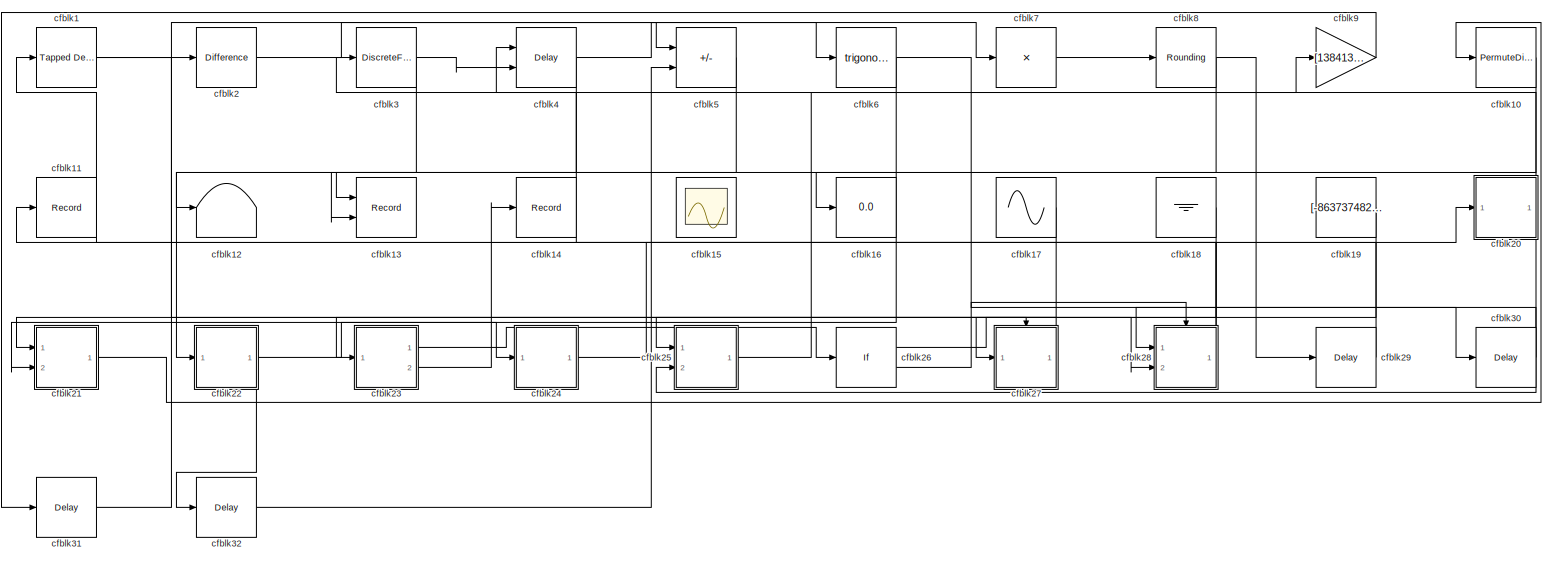
[diagram: root canvas - part 1/1, most of the canvas]
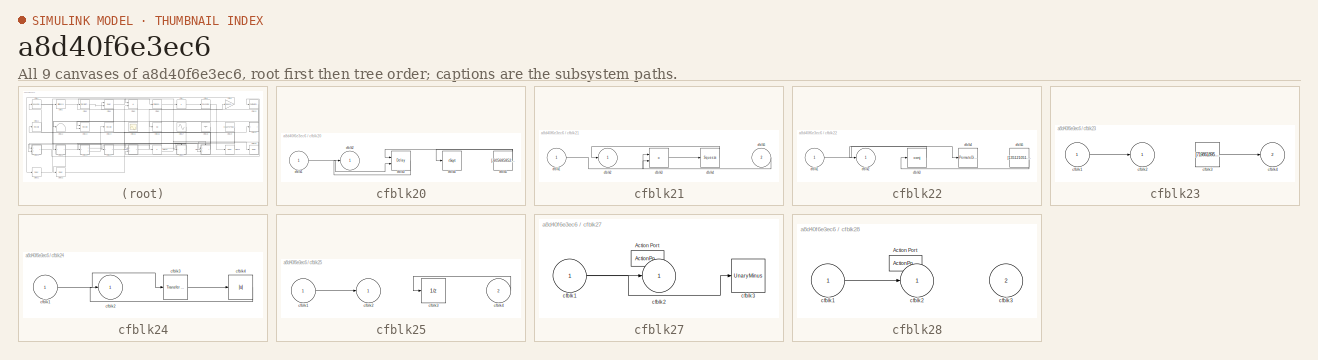
[diagram: thumbnail index - all 9 canvases of the model, root first then tree order]
MODEL slx_a8d40f6e3ec6
KIND model
CONFIG AbsTol = auto
CONFIG EnableMultiTasking = off
CONFIG FixedStep = auto
CONFIG MaxStep = auto
CONFIG MinStep = auto
CONFIG RelTol = 1e-3
CONFIG SampleTimeConstraint = Unconstrained
CONFIG SolverName = VariableStepAuto
CONFIG StartTime = 0.0
CONFIG StopTime = 10.0
BLOCK [Reference] cfblk1  REF=simulink/Discrete/Tapped Delay
  Ports = [1, 1]
  SourceBlock = simulink/Discrete/Tapped Delay
  SourceProductBaseCode = SL
  SourceType = Tapped Delay Line
BLOCK [PermuteDimensions] cfblk10
BLOCK [Record] cfblk11
  FileSettingsInternal = {"entries":[{"content":{"excelSettings":{"content":{},"type":"Streamout.ExcelSettings"}},"type":"Streamout.FileSettingStorage","uuid":"e239c649-e162-45b1-99e0-f70ca900fe27"}],"packageUris":["http://schema.mathworks.com/mf0/streamout_blocks/R2020a"],"version":"1.0"}
  Ports = [1]
  SignalsInternal = {"entries":[{"content":{"signals":[{"content":{"blockPath":["sampleModel136/cfblk11"],"channel":[],"dimensions":[1],"domain":"sampleModel136/cfblk11","lineColor":"#fe330a","plots":[1],"port":1,"sid":[""],"signalID":4775,"signalName":"cfblk28"},"type":"RecordBlkView.Signal","uuid":"98577bf9-6dcc-42ea-89ac-f543c9a0b2c8"}]},"type":"RecordBlkView.InputSignals","uuid":"1309dedc-c4ce-41f5-a313-656a11216...<+97ch>
  VisualizationBindings = {"sparklinesplugin":{"info":[{"bindingParametersList":[],"subplotID":1}]}}
BLOCK [Terminator] cfblk12
BLOCK [Record] cfblk13
  CompatibilityTag = XY
  FileSettingsInternal = {"entries":[{"content":{"excelSettings":{"content":{},"type":"Streamout.ExcelSettings"}},"type":"Streamout.FileSettingStorage","uuid":"7e438cff-e1e9-42c2-9201-376bcc0859c7"}],"packageUris":["http://schema.mathworks.com/mf0/streamout_blocks/R2020a"],"version":"1.0"}
  Layout = [1 1]
  Ports = [2]
  SignalsInternal = {"entries":[{"content":{"signals":[{"content":{"blockPath":["sampleModel136/cfblk13"],"channel":[],"dimensions":[1],"domain":"sampleModel136/cfblk13","lineColor":"#a2142f","plots":[1],"port":1,"sid":[""],"signalID":4779,"signalName":"cfblk4"},"type":"RecordBlkView.Signal","uuid":"cf575757-36e5-4343-89ff-bcf67058d461"},{"content":{"blockPath":["sampleModel136/cfblk13"],"channel":[],"dimensions":[1]...<+381ch>
  VisualizationBindings = {"xyplotplugin":{"info":[{"series":[{"bindingParametersList":[{"parameter":"X-Axis","signalID":4779,"signalName":"cfblk4"},{"parameter":"Y-Axis","signalID":4783,"signalName":"cfblk3"}],"seriesID":50209}],"subplotID":1}]}}
BLOCK [Record] cfblk14
  FileSettingsInternal = {"entries":[{"content":{"excelSettings":{"content":{},"type":"Streamout.ExcelSettings"}},"type":"Streamout.FileSettingStorage","uuid":"a66961b6-6b32-4e46-aeb1-523b8202ddf9"}],"packageUris":["http://schema.mathworks.com/mf0/streamout_blocks/R2020a"],"version":"1.0"}
  Ports = [1]
  SignalsInternal = {"entries":[{"content":{"signals":[{"content":{"blockPath":["sampleModel136/cfblk14"],"channel":[],"dimensions":[1],"domain":"sampleModel136/cfblk14","lineColor":"#d95319","plots":[1],"port":1,"sid":[""],"signalID":4787,"signalName":"cfblk23:2"},"type":"RecordBlkView.Signal","uuid":"cb300982-8b9f-44cb-86a1-47a6627cf367"}]},"type":"RecordBlkView.InputSignals","uuid":"16d4de59-5a7e-4e6e-983c-ef62e53...<+99ch>
  VisualizationBindings = {"sparklinesplugin":{"info":[{"bindingParametersList":[],"subplotID":1}]}}
BLOCK [Scope] cfblk15
  Floating = on
  NumInputPorts = 1
  Ports = []
BLOCK [Display] cfblk16
  Decimation = 1
  Ports = [1]
BLOCK [Sin] cfblk17
  Amplitude = [-373981479.993645]
  Bias = [-414069447.787755]
  Ports = [0, 1]
  SampleTime = 0
BLOCK [Ground] cfblk18
BLOCK [Constant] cfblk19
  SampleTime = 1
  Value = [-863737482.037659]
BLOCK [Reference] cfblk2  REF=simulink/Discrete/Difference
  Ports = [1, 1]
  SourceBlock = simulink/Discrete/Difference
  SourceProductBaseCode = SL
  SourceType = Difference
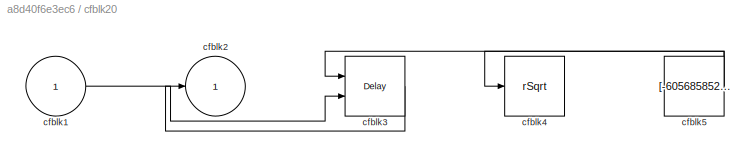
BLOCK [SubSystem] cfblk20
  Ports = [1, 1]
  RequestExecContextInheritance = off
BLOCK [Inport] cfblk20/cfblk1
BLOCK [Outport] cfblk20/cfblk2
BLOCK [Delay] cfblk20/cfblk3
  InputPortMap = u0,e6
  Ports = [2, 1]
  SampleTime = 1
  ShowEnablePort = on
BLOCK [Sqrt] cfblk20/cfblk4
  AlgorithmType = Newton-Raphson
  Operator = rSqrt
BLOCK [Constant] cfblk20/cfblk5
  SampleTime = 1
  Value = [-605685852.056789]
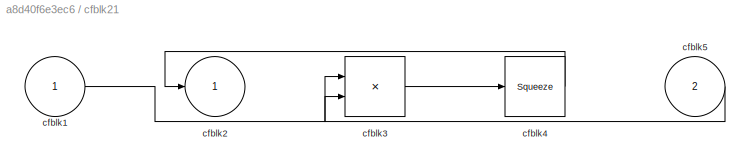
BLOCK [SubSystem] cfblk21
  Ports = [2, 1]
  RequestExecContextInheritance = off
BLOCK [Inport] cfblk21/cfblk1
BLOCK [Outport] cfblk21/cfblk2
BLOCK [Product] cfblk21/cfblk3
  Ports = [2, 1]
BLOCK [Squeeze] cfblk21/cfblk4
BLOCK [Inport] cfblk21/cfblk5
  Port = 2
BLOCK [SubSystem] cfblk22
  Ports = [1, 1]
  RequestExecContextInheritance = off
BLOCK [Inport] cfblk22/cfblk1
BLOCK [Outport] cfblk22/cfblk2
BLOCK [Math] cfblk22/cfblk3
  Operator = conj
  Ports = [1, 1]
BLOCK [PermuteDimensions] cfblk22/cfblk4
BLOCK [Constant] cfblk22/cfblk5
  SampleTime = 1
  Value = [135121051.299651]
BLOCK [SubSystem] cfblk23
  Ports = [1, 2]
  RequestExecContextInheritance = off
BLOCK [Inport] cfblk23/cfblk1
BLOCK [Outport] cfblk23/cfblk2
BLOCK [Constant] cfblk23/cfblk3
  SampleTime = 1
  Value = [719861895.114660]
BLOCK [Outport] cfblk23/cfblk4
  Port = 2
BLOCK [SubSystem] cfblk24
  Ports = [1, 1]
  RequestExecContextInheritance = off
BLOCK [Inport] cfblk24/cfblk1
BLOCK [Outport] cfblk24/cfblk2
BLOCK [Reference] cfblk24/cfblk3  REF=simulink/Discrete/Transfer Fcn
Real Zero
  Ports = [1, 1]
  SourceBlock = simulink/Discrete/Transfer Fcn\nReal Zero
  SourceProductBaseCode = SL
  SourceType = Transfer Fcn Real Zero
BLOCK [Abs] cfblk24/cfblk4
  SaturateOnIntegerOverflow = off
BLOCK [SubSystem] cfblk25
  Ports = [2, 1]
  RequestExecContextInheritance = off
BLOCK [Inport] cfblk25/cfblk1
BLOCK [Outport] cfblk25/cfblk2
BLOCK [UnitDelay] cfblk25/cfblk3
  HasFrameUpgradeWarning = on
BLOCK [Inport] cfblk25/cfblk4
  Port = 2
BLOCK [If] cfblk26
  IfExpression = u1 >= 0
  Ports = [1, 2]
  SampleTime = 1
BLOCK [SubSystem] cfblk27
  Ports = [1, 1, 0, 0, 0, 0, 0, 1]
  RequestExecContextInheritance = off
  TreatAsAtomicUnit = on
BLOCK [ActionPort] cfblk27/Action Port
  ActionPortLabel = if(u1 >= 0)
BLOCK [Inport] cfblk27/cfblk1
BLOCK [Outport] cfblk27/cfblk2
BLOCK [UnaryMinus] cfblk27/cfblk3
BLOCK [SubSystem] cfblk28
  Ports = [2, 1, 0, 0, 0, 0, 0, 1]
  RequestExecContextInheritance = off
  TreatAsAtomicUnit = on
BLOCK [ActionPort] cfblk28/Action Port
  ActionPortLabel = else
BLOCK [Inport] cfblk28/cfblk1
BLOCK [Outport] cfblk28/cfblk2
BLOCK [Inport] cfblk28/cfblk3
  Port = 2
BLOCK [Delay] cfblk29
  InputPortMap = u0
  Ports = [1, 1]
  SampleTime = 1
BLOCK [DiscreteFir] cfblk3
  InputPortMap = u0
  OutputPortMap = o0
  Ports = [1, 1]
  SampleTime = 1
BLOCK [Delay] cfblk30
  InputPortMap = u0
  Ports = [1, 1]
  SampleTime = 1
BLOCK [Delay] cfblk31
  InputPortMap = u0
  Ports = [1, 1]
  SampleTime = 1
BLOCK [Delay] cfblk32
  InputPortMap = u0
  Ports = [1, 1]
  SampleTime = 1
BLOCK [Delay] cfblk4
  DelayLengthSource = Input port
  InputPortMap = u0,p1
  Ports = [2, 1]
  SampleTime = 1
BLOCK [Sum] cfblk5
  IconShape = rectangular
  Inputs = +-
  Ports = [2, 1]
BLOCK [Trigonometry] cfblk6
  Ports = [1, 1]
BLOCK [Product] cfblk7
  Inputs = *
  Ports = [1, 1]
BLOCK [Rounding] cfblk8
BLOCK [Gain] cfblk9
  Gain = [138413423.025432]
LINE cfblk10:1 -> cfblk16:1
LINE cfblk17:1 -> cfblk21:1
LINE cfblk18:1 -> cfblk23:1
LINE cfblk19:1 -> cfblk27:1
NET cfblk1:1 -> cfblk28:2, cfblk7:1
LINE cfblk20/cfblk1:1 -> cfblk20/cfblk3:2
LINE cfblk20/cfblk3:1 -> cfblk20/cfblk2:1
NET cfblk20/cfblk5:1 -> cfblk20/cfblk3:1, cfblk20/cfblk4:1
NET cfblk20:1 -> cfblk25:2, cfblk3:1
LINE cfblk21/cfblk1:1 -> cfblk21/cfblk3:1
LINE cfblk21/cfblk3:1 -> cfblk21/cfblk4:1
LINE cfblk21/cfblk4:1 -> cfblk21/cfblk2:1
LINE cfblk21/cfblk5:1 -> cfblk21/cfblk3:2
LINE cfblk21:1 -> cfblk10:1
LINE cfblk22/cfblk1:1 -> cfblk22/cfblk4:1
LINE cfblk22/cfblk3:1 -> cfblk22/cfblk2:1
LINE cfblk22/cfblk5:1 -> cfblk22/cfblk3:1
NET cfblk22:1 -> cfblk24:1, cfblk32:1
LINE cfblk23/cfblk1:1 -> cfblk23/cfblk2:1
LINE cfblk23/cfblk3:1 -> cfblk23/cfblk4:1
LINE cfblk23:1 -> cfblk26:1
LINE cfblk23:2 -> cfblk14:1
LINE cfblk24/cfblk1:1 -> cfblk24/cfblk3:1
LINE cfblk24/cfblk3:1 -> cfblk24/cfblk4:1
LINE cfblk24/cfblk4:1 -> cfblk24/cfblk2:1
LINE cfblk24:1 -> cfblk20:1
LINE cfblk25/cfblk1:1 -> cfblk25/cfblk2:1
LINE cfblk25/cfblk4:1 -> cfblk25/cfblk3:1
LINE cfblk25:1 -> cfblk9:1
LINE cfblk26:1 -> cfblk27:ifaction
LINE cfblk26:2 -> cfblk28:ifaction
NET cfblk27/cfblk1:1 -> cfblk27/cfblk2:1, cfblk27/cfblk3:1
LINE cfblk27:1 -> cfblk25:1
LINE cfblk28/cfblk1:1 -> cfblk28/cfblk2:1
NET cfblk28:1 -> cfblk11:1, cfblk4:1
LINE cfblk29:1 -> cfblk1:1
LINE cfblk2:1 -> cfblk5:1
LINE cfblk30:1 -> cfblk28:1
LINE cfblk31:1 -> cfblk2:1
LINE cfblk32:1 -> cfblk5:2
NET cfblk3:1 -> cfblk13:2, cfblk4:2
NET cfblk4:1 -> cfblk13:1, cfblk6:1
LINE cfblk5:1 -> cfblk22:1
NET cfblk6:1 -> cfblk21:2, cfblk30:1
LINE cfblk7:1 -> cfblk8:1
NET cfblk8:1 -> cfblk12:1, cfblk29:1
LINE cfblk9:1 -> cfblk31:1
note: NET lines group one-source signal fan-out (src -> all destinations, sorted); 1:1 wires keep LINE
